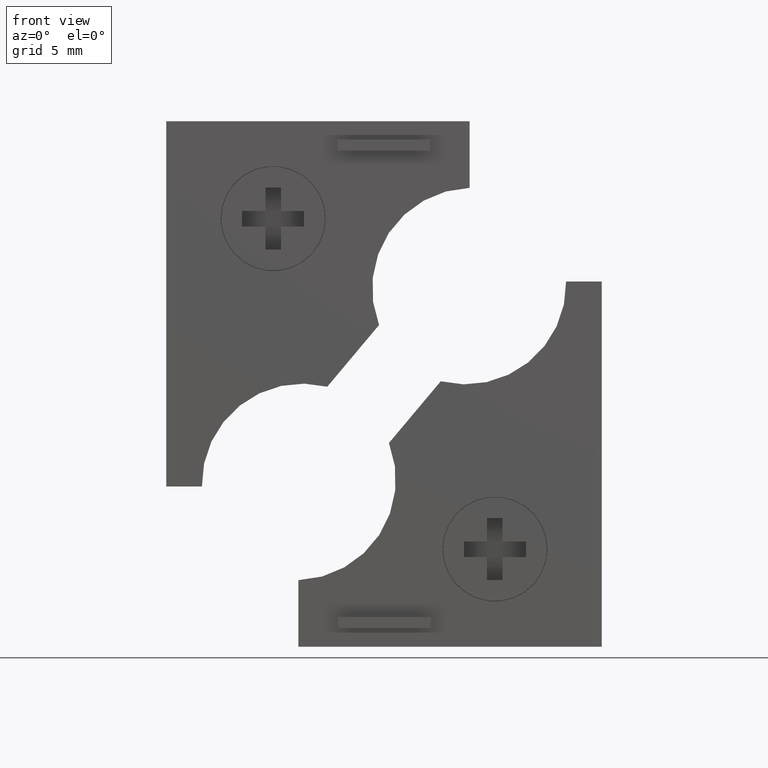
[diagram: clean part render]
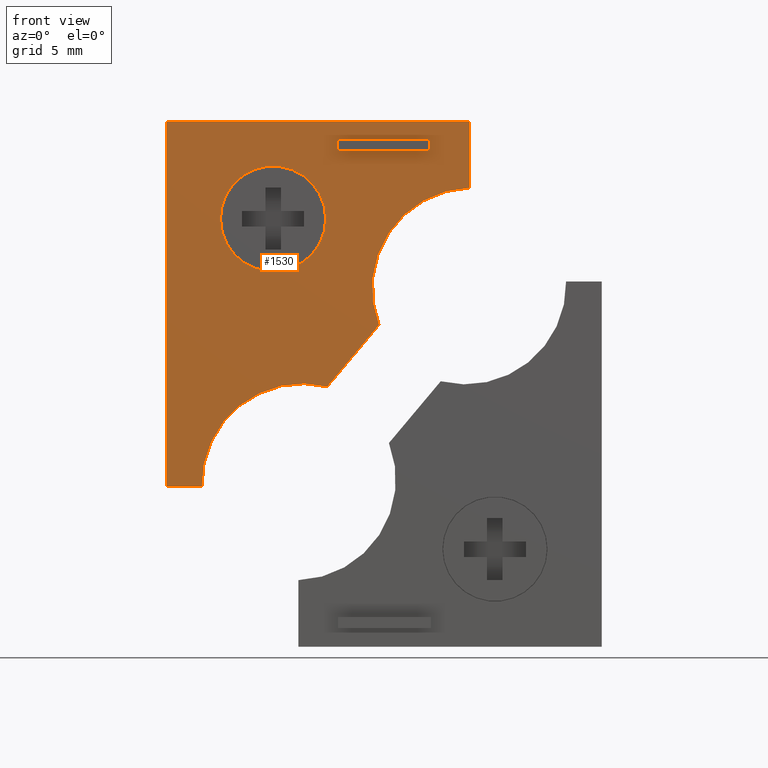
[diagram: same view with one face highlighted and labeled with its STEP entity id]
A machine part, front view. The second image highlights one B-rep face of the part: STEP entity #1530.
In plain terms, the highlighted planar face has unit normal (0, -1, -0).
Its self-contained STEP definition (entity closure, byte-faithful):
#200=CARTESIAN_POINT('',(15.597735,19.457183,-16.85));
#210=VERTEX_POINT('',#200);
#240=CARTESIAN_POINT('',(11.8952555903668,19.457183,-21.2624431379364));
#250=DIRECTION('',(-0.642787609686539,0.,-0.766044443118978));
#260=VECTOR('',#250,1.);
#270=LINE('',#240,#260);
#280=CARTESIAN_POINT('',(12.252760055376,19.457183,-20.8363859073933));
#290=VERTEX_POINT('',#280);
#300=EDGE_CURVE('',#210,#290,#270,.T.);
#480=CARTESIAN_POINT('',(23.8370780150092,19.457183,-18.6249724915784));
#490=DIRECTION('',(0.,-1.,0.));
#500=DIRECTION('',(1.,0.,0.));
#510=AXIS2_PLACEMENT_3D('',#480,#490,#500);
#520=PLANE('',#510);
#530=CARTESIAN_POINT('',(8.957518,19.457183,-21.1604260008068));
#540=DIRECTION('',(0.,0.,-1.));
#550=VECTOR('',#540,1.);
#560=LINE('',#530,#550);
#570=CARTESIAN_POINT('',(8.957518,19.457183,-32.1));
#580=VERTEX_POINT('',#570);
#590=CARTESIAN_POINT('',(8.957518,19.457183,-32.8));
#600=VERTEX_POINT('',#590);
#610=EDGE_CURVE('',#580,#600,#560,.T.);
#620=ORIENTED_EDGE('',*,*,#610,.F.);
#630=CARTESIAN_POINT('',(20.0886525443084,19.457183,-32.8));
#640=DIRECTION('',(1.,0.,0.));
#650=VECTOR('',#640,1.);
#660=LINE('',#630,#650);
#670=CARTESIAN_POINT('',(14.9575180000002,19.457183,-32.8));
#680=VERTEX_POINT('',#670);
#690=EDGE_CURVE('',#600,#680,#660,.T.);
#700=ORIENTED_EDGE('',*,*,#690,.F.);
#710=CARTESIAN_POINT('',(14.9575180000002,19.457183,-21.1604260008068));
#720=DIRECTION('',(0.,0.,1.));
#730=VECTOR('',#720,1.);
#740=LINE('',#710,#730);
#750=CARTESIAN_POINT('',(14.9575180000002,19.457183,-32.1));
#760=VERTEX_POINT('',#750);
#770=EDGE_CURVE('',#680,#760,#740,.T.);
#780=ORIENTED_EDGE('',*,*,#770,.F.);
#790=CARTESIAN_POINT('',(20.0886525443084,19.457183,-32.1));
#800=DIRECTION('',(-1.,0.,-6.8321416900008E-17));
#810=VECTOR('',#800,1.);
#820=LINE('',#790,#810);
#830=EDGE_CURVE('',#760,#580,#820,.T.);
#840=ORIENTED_EDGE('',*,*,#830,.F.);
#850=EDGE_LOOP('',(#840,#780,#700,#620));
#860=FACE_BOUND('',#850,.T.);
#870=CARTESIAN_POINT('',(19.097735,19.457183,-27.7));
#880=DIRECTION('',(0.,-1.,0.));
#890=DIRECTION('',(1.,0.,0.));
#900=AXIS2_PLACEMENT_3D('',#870,#880,#890);
#910=CIRCLE('',#900,3.4);
#920=CARTESIAN_POINT('',(22.497735,19.457183,-27.7));
#930=VERTEX_POINT('',#920);
#940=CARTESIAN_POINT('',(15.697735,19.457183,-27.7));
#950=VERTEX_POINT('',#940);
#960=EDGE_CURVE('',#930,#950,#910,.T.);
#970=ORIENTED_EDGE('',*,*,#960,.F.);
#980=EDGE_CURVE('',#950,#930,#910,.T.);
#990=ORIENTED_EDGE('',*,*,#980,.F.);
#1000=EDGE_LOOP('',(#990,#970));
#1010=FACE_BOUND('',#1000,.T.);
#1020=CARTESIAN_POINT('',(17.197735,19.457183,-10.55));
#1030=DIRECTION('',(0.,-1.,0.));
#1040=DIRECTION('',(-1.,0.,0.));
#1050=AXIS2_PLACEMENT_3D('',#1020,#1030,#1040);
#1060=CIRCLE('',#1050,6.5);
#1070=CARTESIAN_POINT('',(23.69600400028,19.457183,-10.3999999999997));
#1080=VERTEX_POINT('',#1070);
#1090=EDGE_CURVE('',#210,#1080,#1060,.T.);
#1100=ORIENTED_EDGE('',*,*,#1090,.F.);
#1110=CARTESIAN_POINT('',(20.0886525443084,19.457183,-10.3999999999997))
;
#1120=DIRECTION('',(-1.,0.,-4.07913328703808E-16));
#1130=VECTOR('',#1120,1.);
#1140=LINE('',#1110,#1130);
#1150=CARTESIAN_POINT('',(25.997735,19.457183,-10.3999999999997));
#1160=VERTEX_POINT('',#1150);
#1170=EDGE_CURVE('',#1160,#1080,#1140,.T.);
#1180=ORIENTED_EDGE('',*,*,#1170,.T.);
#1190=CARTESIAN_POINT('',(25.997735,19.457183,-17.2999998703598));
#1200=DIRECTION('',(0.,0.,-1.));
#1210=VECTOR('',#1200,1.);
#1220=LINE('',#1190,#1210);
#1230=CARTESIAN_POINT('',(25.997735,19.457183,-34.0000000000006));
#1240=VERTEX_POINT('',#1230);
#1250=EDGE_CURVE('',#1160,#1240,#1220,.T.);
#1260=ORIENTED_EDGE('',*,*,#1250,.F.);
#1270=CARTESIAN_POINT('',(25.6477350000001,19.457183,-34.0000000000006))
;
#1280=DIRECTION('',(-1.,0.,0.));
#1290=VECTOR('',#1280,1.);
#1300=LINE('',#1270,#1290);
#1310=CARTESIAN_POINT('',(6.39773500000005,19.457183,-34.0000000000006))
;
#1320=VERTEX_POINT('',#1310);
#1330=EDGE_CURVE('',#1240,#1320,#1300,.T.);
#1340=ORIENTED_EDGE('',*,*,#1330,.F.);
#1350=CARTESIAN_POINT('',(6.397735,19.457183,-21.1604260008068));
#1360=DIRECTION('',(0.,0.,1.));
#1370=VECTOR('',#1360,1.);
#1380=LINE('',#1350,#1370);
#1390=CARTESIAN_POINT('',(6.397735,19.457183,-29.6969223483123));
#1400=VERTEX_POINT('',#1390);
#1410=EDGE_CURVE('',#1320,#1400,#1380,.T.);
#1420=ORIENTED_EDGE('',*,*,#1410,.F.);
#1430=CARTESIAN_POINT('',(6.19773500000001,19.457183,-23.2));
#1440=DIRECTION('',(0.,-1.,0.));
#1450=DIRECTION('',(-1.,0.,0.));
#1460=AXIS2_PLACEMENT_3D('',#1430,#1440,#1450);
#1470=CIRCLE('',#1460,6.5);
#1480=EDGE_CURVE('',#1400,#290,#1470,.T.);
#1490=ORIENTED_EDGE('',*,*,#1480,.F.);
#1500=ORIENTED_EDGE('',*,*,#300,.T.);
#1510=EDGE_LOOP('',(#1500,#1490,#1420,#1340,#1260,#1180,#1100));
#1520=FACE_OUTER_BOUND('',#1510,.T.);
#1530=ADVANCED_FACE('',(#860,#1010,#1520),#520,.T.);